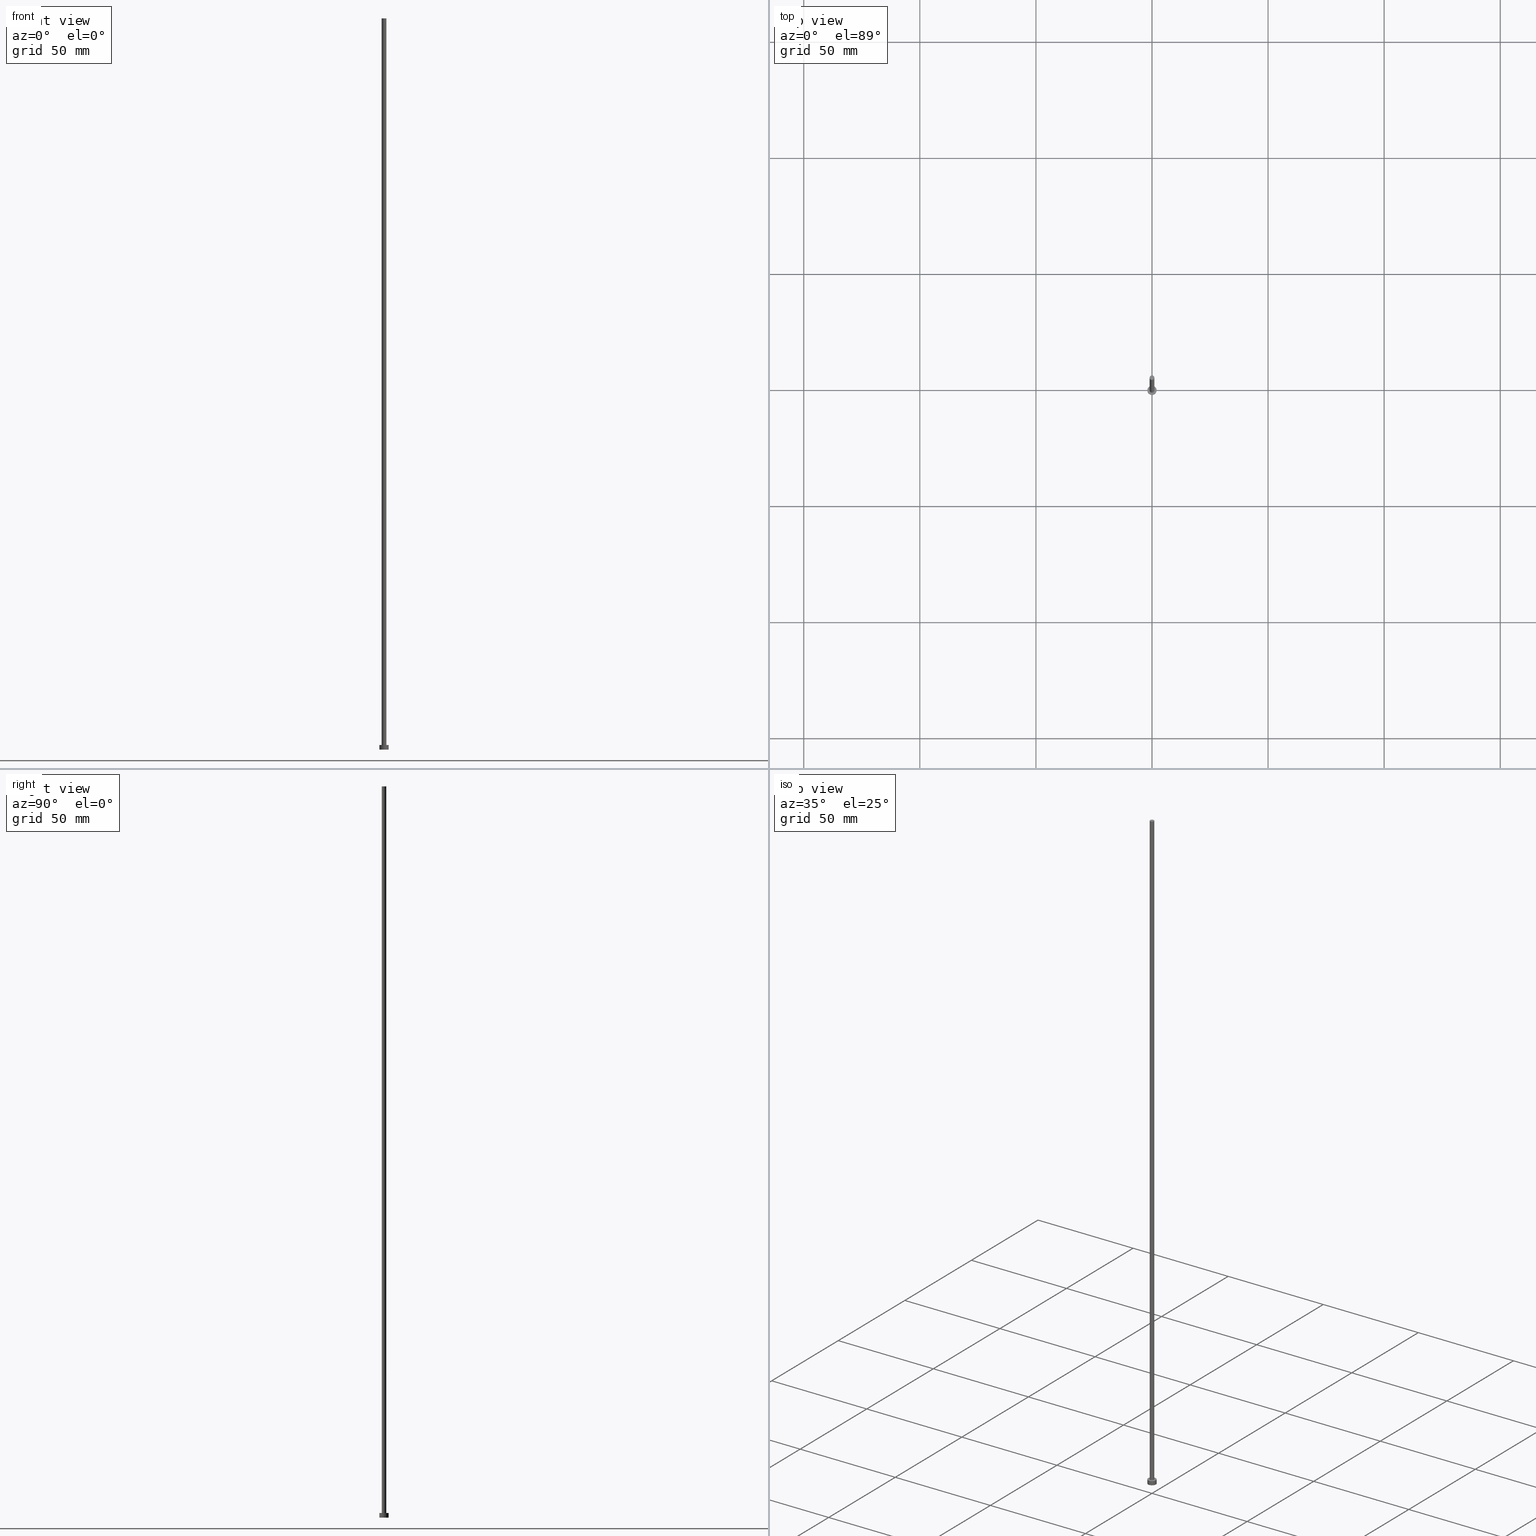
[diagram: canonical four-view strip — front | top / right | iso, engineering-drawing reading convention]
A machine part, canonical four-view strip (front | top / right | iso — engineering-drawing reading convention). The complete STEP part file that produces these views, byte-faithful:
ISO-10303-21;
HEADER;
FILE_DESCRIPTION (( 'STEP AP203' ),
    '1' );
FILE_NAME ('6155.STEP',
    '2023-02-12T12:51:45',
    ( '' ),
    ( '' ),
    'SwSTEP 2.0',
    'SolidWorks 2019',
    '' );
FILE_SCHEMA (( 'CONFIG_CONTROL_DESIGN' ));
ENDSEC;

DATA;
#1 = FACE_OUTER_BOUND ( 'NONE', #234, .T. ) ;
#2 = APPROVAL_ROLE ( '' ) ;
#3 = LINE ( 'NONE', #116, #71 ) ;
#4 = AXIS2_PLACEMENT_3D ( 'NONE', #86, #141, #241 ) ;
#5 = CIRCLE ( 'NONE', #194, 1.000000000000000000 ) ;
#6 = CARTESIAN_POINT ( 'NONE',  ( 1.000000000000000000, 1.224646799147353207E-16, 2.000000000000000000 ) ) ;
#7 = PRODUCT_DEFINITION ( 'NEZN�M�', '', #242, #209 ) ;
#8 = CARTESIAN_POINT ( 'NONE',  ( 0.000000000000000000, 0.000000000000000000, 315.0000000000000000 ) ) ;
#9 = PLANE ( 'NONE',  #49 ) ;
#10 = EDGE_CURVE ( 'NONE', #113, #236, #151, .T. ) ;
#11 = CARTESIAN_POINT ( 'NONE',  ( 0.000000000000000000, 0.000000000000000000, 0.000000000000000000 ) ) ;
#12 = COORDINATED_UNIVERSAL_TIME_OFFSET ( 1, 0, .AHEAD. ) ;
#13 = CARTESIAN_POINT ( 'NONE',  ( 0.000000000000000000, 0.000000000000000000, 2.000000000000000000 ) ) ;
#14 = MECHANICAL_CONTEXT ( 'NONE', #45, 'mechanical' ) ;
#15 = AXIS2_PLACEMENT_3D ( 'NONE', #227, #77, #146 ) ;
#16 = ADVANCED_FACE ( 'NONE', ( #213 ), #40, .T. ) ;
#17 = ORIENTED_EDGE ( 'NONE', *, *, #107, .T. ) ;
#18 = CALENDAR_DATE ( 2023, 12, 2 ) ;
#19 = PERSON_AND_ORGANIZATION ( #250, #37 ) ;
#20 = VERTEX_POINT ( 'NONE', #157 ) ;
#21 = DATE_AND_TIME ( #255, #140 ) ;
#22 = ORIENTED_EDGE ( 'NONE', *, *, #27, .F. ) ;
#23 = PERSON_AND_ORGANIZATION ( #250, #37 ) ;
#24 = CC_DESIGN_PERSON_AND_ORGANIZATION_ASSIGNMENT ( #199, #253, ( #187 ) ) ;
#25 = VECTOR ( 'NONE', #178, 1000.000000000000000 ) ;
#26 = CARTESIAN_POINT ( 'NONE',  ( -1.000000000000000000, 0.000000000000000000, 315.0000000000000000 ) ) ;
#27 = EDGE_CURVE ( 'NONE', #67, #20, #5, .T. ) ;
#28 = AXIS2_PLACEMENT_3D ( 'NONE', #139, #240, #251 ) ;
#29 = CARTESIAN_POINT ( 'NONE',  ( 0.000000000000000000, 0.000000000000000000, 2.000000000000000000 ) ) ;
#30 = FACE_OUTER_BOUND ( 'NONE', #229, .T. ) ;
#31 = PERSON_AND_ORGANIZATION ( #250, #37 ) ;
#32 = CARTESIAN_POINT ( 'NONE',  ( 0.000000000000000000, 0.000000000000000000, 2.000000000000000000 ) ) ;
#33 = DIRECTION ( 'NONE',  ( -0.000000000000000000, -0.000000000000000000, -1.000000000000000000 ) ) ;
#34 = ADVANCED_BREP_SHAPE_REPRESENTATION ( '6155', ( #207, #225 ), #129 ) ;
#35 = CYLINDRICAL_SURFACE ( 'NONE', #28, 2.000000000000000000 ) ;
#36 = EDGE_LOOP ( 'NONE', ( #153, #168 ) ) ;
#37 = ORGANIZATION ( 'NEUR�EN�', 'NEUR�EN�', '' ) ;
#38 = PRODUCT ( '6155', '6155', '', ( #14 ) ) ;
#39 = VERTEX_POINT ( 'NONE', #159 ) ;
#40 = CYLINDRICAL_SURFACE ( 'NONE', #88, 1.000000000000000000 ) ;
#41 = ADVANCED_FACE ( 'NONE', ( #1 ), #138, .T. ) ;
#42 = CIRCLE ( 'NONE', #202, 2.000000000000000000 ) ;
#43 = ORIENTED_EDGE ( 'NONE', *, *, #238, .T. ) ;
#44 = ORIENTED_EDGE ( 'NONE', *, *, #238, .F. ) ;
#45 = APPLICATION_CONTEXT ( 'configuration controlled 3d designs of mechanical parts and assemblies' ) ;
#46 = CARTESIAN_POINT ( 'NONE',  ( 2.000000000000000000, 2.449293598294706414E-16, 2.000000000000000000 ) ) ;
#47 = PERSON_AND_ORGANIZATION_ROLE ( 'creator' ) ;
#48 =( NAMED_UNIT ( * ) PLANE_ANGLE_UNIT ( ) SI_UNIT ( $, .RADIAN. ) );
#49 = AXIS2_PLACEMENT_3D ( 'NONE', #90, #164, #245 ) ;
#50 = CYLINDRICAL_SURFACE ( 'NONE', #66, 1.000000000000000000 ) ;
#51 = CARTESIAN_POINT ( 'NONE',  ( 0.000000000000000000, 0.000000000000000000, 315.0000000000000000 ) ) ;
#52 = DIRECTION ( 'NONE',  ( 0.000000000000000000, 0.000000000000000000, 1.000000000000000000 ) ) ;
#53 = DIRECTION ( 'NONE',  ( 0.000000000000000000, 0.000000000000000000, 1.000000000000000000 ) ) ;
#54 = CC_DESIGN_PERSON_AND_ORGANIZATION_ASSIGNMENT ( #216, #115, ( #242 ) ) ;
#55 = PERSON_AND_ORGANIZATION_ROLE ( 'design_owner' ) ;
#56 = FACE_OUTER_BOUND ( 'NONE', #100, .T. ) ;
#57 = DIRECTION ( 'NONE',  ( 0.000000000000000000, 0.000000000000000000, 1.000000000000000000 ) ) ;
#58 = EDGE_CURVE ( 'NONE', #67, #236, #220, .T. ) ;
#59 = ORIENTED_EDGE ( 'NONE', *, *, #81, .T. ) ;
#60 = APPLICATION_PROTOCOL_DEFINITION ( 'international standard', 'config_control_design', 1994, #45 ) ;
#61 = VERTEX_POINT ( 'NONE', #201 ) ;
#62 = LOCAL_TIME ( 13, 51, 45.00000000000000000, #96 ) ;
#63 = EDGE_LOOP ( 'NONE', ( #193, #98, #43, #210 ) ) ;
#64 = DATE_AND_TIME ( #232, #228 ) ;
#65 = ORIENTED_EDGE ( 'NONE', *, *, #218, .T. ) ;
#66 = AXIS2_PLACEMENT_3D ( 'NONE', #87, #33, #73 ) ;
#67 = VERTEX_POINT ( 'NONE', #26 ) ;
#68 = CARTESIAN_POINT ( 'NONE',  ( 0.000000000000000000, 0.000000000000000000, 315.0000000000000000 ) ) ;
#69 = CIRCLE ( 'NONE', #248, 2.000000000000000000 ) ;
#70 = ADVANCED_FACE ( 'NONE', ( #105 ), #50, .T. ) ;
#71 = VECTOR ( 'NONE', #127, 1000.000000000000000 ) ;
#72 = DIRECTION ( 'NONE',  ( 1.000000000000000000, 0.000000000000000000, 0.000000000000000000 ) ) ;
#73 = DIRECTION ( 'NONE',  ( -1.000000000000000000, 0.000000000000000000, 0.000000000000000000 ) ) ;
#74 = ADVANCED_FACE ( 'NONE', ( #144 ), #110, .T. ) ;
#75 = CARTESIAN_POINT ( 'NONE',  ( 0.000000000000000000, 0.000000000000000000, 0.000000000000000000 ) ) ;
#76 = LOCAL_TIME ( 13, 51, 45.00000000000000000, #173 ) ;
#77 = DIRECTION ( 'NONE',  ( 0.000000000000000000, 0.000000000000000000, 1.000000000000000000 ) ) ;
#78 = APPLICATION_PROTOCOL_DEFINITION ( 'international standard', 'config_control_design', 1994, #183 ) ;
#79 = CARTESIAN_POINT ( 'NONE',  ( -1.000000000000000000, 0.000000000000000000, 2.000000000000000000 ) ) ;
#80 = ORIENTED_EDGE ( 'NONE', *, *, #107, .F. ) ;
#81 = EDGE_CURVE ( 'NONE', #61, #39, #254, .T. ) ;
#82 = DIRECTION ( 'NONE',  ( 1.000000000000000000, 0.000000000000000000, 0.000000000000000000 ) ) ;
#83 = VECTOR ( 'NONE', #233, 1000.000000000000000 ) ;
#84 = DATE_AND_TIME ( #97, #62 ) ;
#85 = SHAPE_DEFINITION_REPRESENTATION ( #246, #34 ) ;
#86 = CARTESIAN_POINT ( 'NONE',  ( 0.000000000000000000, 0.000000000000000000, 315.0000000000000000 ) ) ;
#87 = CARTESIAN_POINT ( 'NONE',  ( 0.000000000000000000, 0.000000000000000000, 315.0000000000000000 ) ) ;
#88 = AXIS2_PLACEMENT_3D ( 'NONE', #68, #200, #120 ) ;
#89 = DIRECTION ( 'NONE',  ( 0.000000000000000000, 0.000000000000000000, 1.000000000000000000 ) ) ;
#90 = CARTESIAN_POINT ( 'NONE',  ( 0.000000000000000000, 0.000000000000000000, 0.000000000000000000 ) ) ;
#91 = PERSON_AND_ORGANIZATION ( #250, #37 ) ;
#92 = UNCERTAINTY_MEASURE_WITH_UNIT (LENGTH_MEASURE( 1.000000000000000082E-05 ), #230, 'distance_accuracy_value', 'NONE');
#93 = FACE_OUTER_BOUND ( 'NONE', #208, .T. ) ;
#94 = ORIENTED_EDGE ( 'NONE', *, *, #58, .F. ) ;
#95 = APPROVAL_STATUS ( 'not_yet_approved' ) ;
#96 = COORDINATED_UNIVERSAL_TIME_OFFSET ( 1, 0, .AHEAD. ) ;
#97 = CALENDAR_DATE ( 2023, 12, 2 ) ;
#98 = ORIENTED_EDGE ( 'NONE', *, *, #81, .F. ) ;
#99 = COORDINATED_UNIVERSAL_TIME_OFFSET ( 1, 0, .AHEAD. ) ;
#100 = EDGE_LOOP ( 'NONE', ( #59, #17 ) ) ;
#101 = CC_DESIGN_PERSON_AND_ORGANIZATION_ASSIGNMENT ( #91, #55, ( #38 ) ) ;
#102 = LINE ( 'NONE', #249, #25 ) ;
#103 = DIRECTION ( 'NONE',  ( 1.000000000000000000, 0.000000000000000000, 0.000000000000000000 ) ) ;
#104 = DATE_TIME_ROLE ( 'classification_date' ) ;
#105 = FACE_OUTER_BOUND ( 'NONE', #108, .T. ) ;
#106 = CARTESIAN_POINT ( 'NONE',  ( 0.000000000000000000, 0.000000000000000000, 2.000000000000000000 ) ) ;
#107 = EDGE_CURVE ( 'NONE', #39, #61, #237, .T. ) ;
#108 = EDGE_LOOP ( 'NONE', ( #214, #22, #198, #154 ) ) ;
#109 = APPROVAL_ROLE ( '' ) ;
#110 = CYLINDRICAL_SURFACE ( 'NONE', #119, 2.000000000000000000 ) ;
#111 = ORIENTED_EDGE ( 'NONE', *, *, #132, .F. ) ;
#112 = AXIS2_PLACEMENT_3D ( 'NONE', #8, #163, #162 ) ;
#113 = VERTEX_POINT ( 'NONE', #6 ) ;
#114 = PERSON_AND_ORGANIZATION ( #250, #37 ) ;
#115 = PERSON_AND_ORGANIZATION_ROLE ( 'design_supplier' ) ;
#116 = CARTESIAN_POINT ( 'NONE',  ( -2.000000000000000000, 0.000000000000000000, 2.000000000000000000 ) ) ;
#117 = ADVANCED_FACE ( 'NONE', ( #186, #56 ), #206, .T. ) ;
#118 = DIRECTION ( 'NONE',  ( -0.000000000000000000, -0.000000000000000000, -1.000000000000000000 ) ) ;
#119 = AXIS2_PLACEMENT_3D ( 'NONE', #32, #125, #185 ) ;
#120 = DIRECTION ( 'NONE',  ( -1.000000000000000000, 0.000000000000000000, 0.000000000000000000 ) ) ;
#121 = APPROVAL ( #95, 'NEUR�EN�' ) ;
#122 = CARTESIAN_POINT ( 'NONE',  ( 2.000000000000000000, 2.449293598294706414E-16, 0.000000000000000000 ) ) ;
#123 = DIRECTION ( 'NONE',  ( 0.000000000000000000, 0.000000000000000000, 1.000000000000000000 ) ) ;
#124 = CC_DESIGN_PERSON_AND_ORGANIZATION_ASSIGNMENT ( #212, #152, ( #7 ) ) ;
#125 = DIRECTION ( 'NONE',  ( -0.000000000000000000, -0.000000000000000000, -1.000000000000000000 ) ) ;
#126 = DIRECTION ( 'NONE',  ( 1.000000000000000000, 0.000000000000000000, -0.000000000000000000 ) ) ;
#127 = DIRECTION ( 'NONE',  ( -0.000000000000000000, -0.000000000000000000, -1.000000000000000000 ) ) ;
#128 = VERTEX_POINT ( 'NONE', #184 ) ;
#129 =( GEOMETRIC_REPRESENTATION_CONTEXT ( 3 ) GLOBAL_UNCERTAINTY_ASSIGNED_CONTEXT ( ( #92 ) ) GLOBAL_UNIT_ASSIGNED_CONTEXT ( ( #230, #48, #188 ) ) REPRESENTATION_CONTEXT ( 'NONE', 'WORKASPACE' ) );
#130 = ORIENTED_EDGE ( 'NONE', *, *, #167, .T. ) ;
#131 = DATE_AND_TIME ( #166, #181 ) ;
#132 = EDGE_CURVE ( 'NONE', #20, #67, #224, .T. ) ;
#133 = ORIENTED_EDGE ( 'NONE', *, *, #132, .T. ) ;
#134 = APPROVAL_PERSON_ORGANIZATION ( #23, #137, #2 ) ;
#135 = DIRECTION ( 'NONE',  ( 0.000000000000000000, 0.000000000000000000, 1.000000000000000000 ) ) ;
#136 = APPROVAL_ROLE ( '' ) ;
#137 = APPROVAL ( #179, 'NEUR�EN�' ) ;
#138 = PLANE ( 'NONE',  #4 ) ;
#139 = CARTESIAN_POINT ( 'NONE',  ( 0.000000000000000000, 0.000000000000000000, 2.000000000000000000 ) ) ;
#140 = LOCAL_TIME ( 13, 51, 45.00000000000000000, #195 ) ;
#141 = DIRECTION ( 'NONE',  ( 0.000000000000000000, 0.000000000000000000, 1.000000000000000000 ) ) ;
#142 = EDGE_CURVE ( 'NONE', #128, #148, #42, .T. ) ;
#143 = AXIS2_PLACEMENT_3D ( 'NONE', #13, #52, #247 ) ;
#144 = FACE_OUTER_BOUND ( 'NONE', #63, .T. ) ;
#145 = VECTOR ( 'NONE', #118, 1000.000000000000000 ) ;
#146 = DIRECTION ( 'NONE',  ( 1.000000000000000000, 0.000000000000000000, 0.000000000000000000 ) ) ;
#147 = APPROVAL_PERSON_ORGANIZATION ( #114, #180, #136 ) ;
#148 = VERTEX_POINT ( 'NONE', #122 ) ;
#149 = EDGE_CURVE ( 'NONE', #236, #113, #156, .T. ) ;
#150 = EDGE_LOOP ( 'NONE', ( #111, #175, #155, #94 ) ) ;
#151 = CIRCLE ( 'NONE', #205, 1.000000000000000000 ) ;
#152 = PERSON_AND_ORGANIZATION_ROLE ( 'creator' ) ;
#153 = ORIENTED_EDGE ( 'NONE', *, *, #149, .F. ) ;
#154 = ORIENTED_EDGE ( 'NONE', *, *, #149, .T. ) ;
#155 = ORIENTED_EDGE ( 'NONE', *, *, #10, .T. ) ;
#156 = CIRCLE ( 'NONE', #174, 1.000000000000000000 ) ;
#157 = CARTESIAN_POINT ( 'NONE',  ( 1.000000000000000000, 1.224646799147353207E-16, 315.0000000000000000 ) ) ;
#158 = SECURITY_CLASSIFICATION_LEVEL ( 'unclassified' ) ;
#159 = CARTESIAN_POINT ( 'NONE',  ( 2.000000000000000000, 2.449293598294706414E-16, 2.000000000000000000 ) ) ;
#160 = DIRECTION ( 'NONE',  ( 0.000000000000000000, 0.000000000000000000, 1.000000000000000000 ) ) ;
#161 = CC_DESIGN_APPROVAL ( #180, ( #242 ) ) ;
#162 = DIRECTION ( 'NONE',  ( 1.000000000000000000, 0.000000000000000000, 0.000000000000000000 ) ) ;
#163 = DIRECTION ( 'NONE',  ( 0.000000000000000000, 0.000000000000000000, 1.000000000000000000 ) ) ;
#164 = DIRECTION ( 'NONE',  ( 0.000000000000000000, 0.000000000000000000, 1.000000000000000000 ) ) ;
#165 = APPROVAL_PERSON_ORGANIZATION ( #31, #121, #109 ) ;
#166 = CALENDAR_DATE ( 2023, 12, 2 ) ;
#167 = EDGE_CURVE ( 'NONE', #148, #128, #69, .T. ) ;
#168 = ORIENTED_EDGE ( 'NONE', *, *, #10, .F. ) ;
#169 = DIRECTION ( 'NONE',  ( 0.000000000000000000, 0.000000000000000000, 1.000000000000000000 ) ) ;
#170 = APPROVAL_DATE_TIME ( #64, #137 ) ;
#171 = ADVANCED_FACE ( 'NONE', ( #30 ), #9, .F. ) ;
#172 = ORIENTED_EDGE ( 'NONE', *, *, #167, .F. ) ;
#173 = COORDINATED_UNIVERSAL_TIME_OFFSET ( 1, 0, .AHEAD. ) ;
#174 = AXIS2_PLACEMENT_3D ( 'NONE', #29, #89, #244 ) ;
#175 = ORIENTED_EDGE ( 'NONE', *, *, #221, .T. ) ;
#176 = DATE_TIME_ROLE ( 'creation_date' ) ;
#177 = CLOSED_SHELL ( 'NONE', ( #16, #190, #74, #117, #171, #70, #41 ) ) ;
#178 = DIRECTION ( 'NONE',  ( -0.000000000000000000, -0.000000000000000000, -1.000000000000000000 ) ) ;
#179 = APPROVAL_STATUS ( 'not_yet_approved' ) ;
#180 = APPROVAL ( #219, 'NEUR�EN�' ) ;
#181 = LOCAL_TIME ( 13, 51, 45.00000000000000000, #12 ) ;
#182 = CC_DESIGN_DATE_AND_TIME_ASSIGNMENT ( #84, #104, ( #187 ) ) ;
#183 = APPLICATION_CONTEXT ( 'configuration controlled 3d designs of mechanical parts and assemblies' ) ;
#184 = CARTESIAN_POINT ( 'NONE',  ( -2.000000000000000000, 0.000000000000000000, 0.000000000000000000 ) ) ;
#185 = DIRECTION ( 'NONE',  ( -1.000000000000000000, 0.000000000000000000, 0.000000000000000000 ) ) ;
#186 = FACE_BOUND ( 'NONE', #36, .T. ) ;
#187 = SECURITY_CLASSIFICATION ( '', '', #158 ) ;
#188 =( NAMED_UNIT ( * ) SI_UNIT ( $, .STERADIAN. ) SOLID_ANGLE_UNIT ( ) );
#189 = AXIS2_PLACEMENT_3D ( 'NONE', #106, #57, #126 ) ;
#190 = ADVANCED_FACE ( 'NONE', ( #93 ), #35, .T. ) ;
#191 = CARTESIAN_POINT ( 'NONE',  ( 0.000000000000000000, 0.000000000000000000, 2.000000000000000000 ) ) ;
#192 = PRODUCT_RELATED_PRODUCT_CATEGORY ( 'detail', '', ( #38 ) ) ;
#193 = ORIENTED_EDGE ( 'NONE', *, *, #218, .F. ) ;
#194 = AXIS2_PLACEMENT_3D ( 'NONE', #51, #135, #103 ) ;
#195 = COORDINATED_UNIVERSAL_TIME_OFFSET ( 1, 0, .AHEAD. ) ;
#196 = APPROVAL_DATE_TIME ( #21, #180 ) ;
#197 = CC_DESIGN_APPROVAL ( #137, ( #187 ) ) ;
#198 = ORIENTED_EDGE ( 'NONE', *, *, #58, .T. ) ;
#199 = PERSON_AND_ORGANIZATION ( #250, #37 ) ;
#200 = DIRECTION ( 'NONE',  ( -0.000000000000000000, -0.000000000000000000, -1.000000000000000000 ) ) ;
#201 = CARTESIAN_POINT ( 'NONE',  ( -2.000000000000000000, 0.000000000000000000, 2.000000000000000000 ) ) ;
#202 = AXIS2_PLACEMENT_3D ( 'NONE', #11, #53, #243 ) ;
#203 = CC_DESIGN_PERSON_AND_ORGANIZATION_ASSIGNMENT ( #19, #47, ( #242 ) ) ;
#204 = DIRECTION ( 'NONE',  ( 1.000000000000000000, 0.000000000000000000, 0.000000000000000000 ) ) ;
#205 = AXIS2_PLACEMENT_3D ( 'NONE', #191, #169, #82 ) ;
#206 = PLANE ( 'NONE',  #189 ) ;
#207 = MANIFOLD_SOLID_BREP ( 'P�idat vysunut�m3', #177 ) ;
#208 = EDGE_LOOP ( 'NONE', ( #80, #65, #130, #44 ) ) ;
#209 = DESIGN_CONTEXT ( 'detailed design', #183, 'design' ) ;
#210 = ORIENTED_EDGE ( 'NONE', *, *, #142, .T. ) ;
#211 = CC_DESIGN_SECURITY_CLASSIFICATION ( #187, ( #242 ) ) ;
#212 = PERSON_AND_ORGANIZATION ( #250, #37 ) ;
#213 = FACE_OUTER_BOUND ( 'NONE', #150, .T. ) ;
#214 = ORIENTED_EDGE ( 'NONE', *, *, #221, .F. ) ;
#215 = APPROVAL_DATE_TIME ( #131, #121 ) ;
#216 = PERSON_AND_ORGANIZATION ( #250, #37 ) ;
#217 = CC_DESIGN_APPROVAL ( #121, ( #7 ) ) ;
#218 = EDGE_CURVE ( 'NONE', #39, #148, #239, .T. ) ;
#219 = APPROVAL_STATUS ( 'not_yet_approved' ) ;
#220 = LINE ( 'NONE', #223, #145 ) ;
#221 = EDGE_CURVE ( 'NONE', #20, #113, #102, .T. ) ;
#222 = CARTESIAN_POINT ( 'NONE',  ( 0.000000000000000000, 0.000000000000000000, 0.000000000000000000 ) ) ;
#223 = CARTESIAN_POINT ( 'NONE',  ( -1.000000000000000000, 0.000000000000000000, 315.0000000000000000 ) ) ;
#224 = CIRCLE ( 'NONE', #112, 1.000000000000000000 ) ;
#225 = AXIS2_PLACEMENT_3D ( 'NONE', #222, #160, #72 ) ;
#226 = CC_DESIGN_DATE_AND_TIME_ASSIGNMENT ( #235, #176, ( #7 ) ) ;
#227 = CARTESIAN_POINT ( 'NONE',  ( 0.000000000000000000, 0.000000000000000000, 2.000000000000000000 ) ) ;
#228 = LOCAL_TIME ( 13, 51, 45.00000000000000000, #99 ) ;
#229 = EDGE_LOOP ( 'NONE', ( #252, #172 ) ) ;
#230 =( LENGTH_UNIT ( ) NAMED_UNIT ( * ) SI_UNIT ( .MILLI., .METRE. ) );
#231 = ORIENTED_EDGE ( 'NONE', *, *, #27, .T. ) ;
#232 = CALENDAR_DATE ( 2023, 12, 2 ) ;
#233 = DIRECTION ( 'NONE',  ( -0.000000000000000000, -0.000000000000000000, -1.000000000000000000 ) ) ;
#234 = EDGE_LOOP ( 'NONE', ( #231, #133 ) ) ;
#235 = DATE_AND_TIME ( #18, #76 ) ;
#236 = VERTEX_POINT ( 'NONE', #79 ) ;
#237 = CIRCLE ( 'NONE', #15, 2.000000000000000000 ) ;
#238 = EDGE_CURVE ( 'NONE', #61, #128, #3, .T. ) ;
#239 = LINE ( 'NONE', #46, #83 ) ;
#240 = DIRECTION ( 'NONE',  ( -0.000000000000000000, -0.000000000000000000, -1.000000000000000000 ) ) ;
#241 = DIRECTION ( 'NONE',  ( 1.000000000000000000, 0.000000000000000000, -0.000000000000000000 ) ) ;
#242 = PRODUCT_DEFINITION_FORMATION_WITH_SPECIFIED_SOURCE ( 'LIBOVOLN�', '', #38, .NOT_KNOWN. ) ;
#243 = DIRECTION ( 'NONE',  ( 1.000000000000000000, 0.000000000000000000, 0.000000000000000000 ) ) ;
#244 = DIRECTION ( 'NONE',  ( 1.000000000000000000, 0.000000000000000000, 0.000000000000000000 ) ) ;
#245 = DIRECTION ( 'NONE',  ( 1.000000000000000000, 0.000000000000000000, -0.000000000000000000 ) ) ;
#246 = PRODUCT_DEFINITION_SHAPE ( 'NONE', 'NONE',  #7 ) ;
#247 = DIRECTION ( 'NONE',  ( 1.000000000000000000, 0.000000000000000000, 0.000000000000000000 ) ) ;
#248 = AXIS2_PLACEMENT_3D ( 'NONE', #75, #123, #204 ) ;
#249 = CARTESIAN_POINT ( 'NONE',  ( 1.000000000000000000, 1.224646799147353207E-16, 315.0000000000000000 ) ) ;
#250 = PERSON ( 'NEUR�EN�', 'NEUR�EN�', 'NEUR�EN�', ('NEUR�EN�'), ('NEUR�EN�'), ('NEUR�EN�') ) ;
#251 = DIRECTION ( 'NONE',  ( -1.000000000000000000, 0.000000000000000000, 0.000000000000000000 ) ) ;
#252 = ORIENTED_EDGE ( 'NONE', *, *, #142, .F. ) ;
#253 = PERSON_AND_ORGANIZATION_ROLE ( 'classification_officer' ) ;
#254 = CIRCLE ( 'NONE', #143, 2.000000000000000000 ) ;
#255 = CALENDAR_DATE ( 2023, 12, 2 ) ;
ENDSEC;
END-ISO-10303-21;
